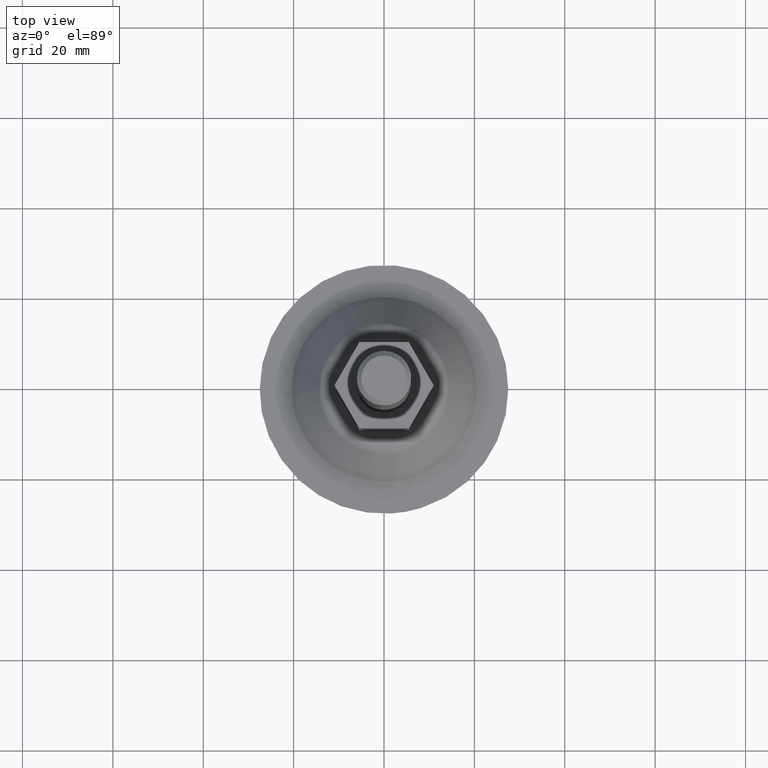
[diagram: clean part render]
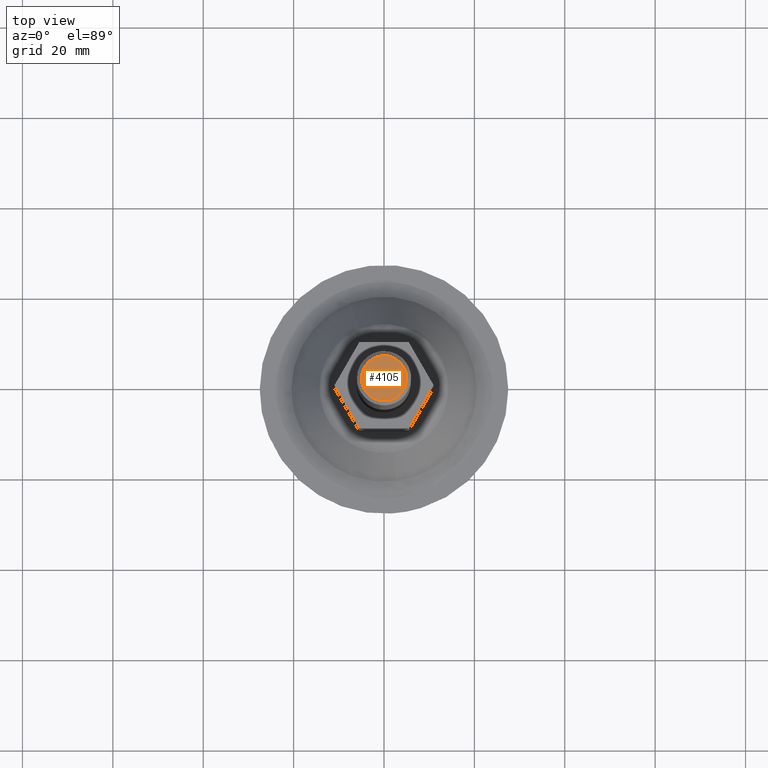
[diagram: same view with one face highlighted and labeled with its STEP entity id]
A machine part, top view. The second image highlights one B-rep face of the part: STEP entity #4105.
In plain terms, the highlighted face is a freeform B-spline surface patch.
Its self-contained STEP definition (entity closure, byte-faithful):
#2643=CARTESIAN_POINT('',(2.021077160560492,-4.573319047651122,141.999999999945200));
#2644=VERTEX_POINT('',#2643);
#2650=CARTESIAN_POINT('',(-5.0,0.0,142.0));
#2651=VERTEX_POINT('',#2650);
#2652=CARTESIAN_POINT('',(-5.0,0.0,142.0));
#2653=CARTESIAN_POINT('',(-5.000000000000001,-5.000000000000001,142.000000000000090));
#2654=CARTESIAN_POINT('',(0.0,-5.0,142.0));
#2655=CARTESIAN_POINT('',(1.055578086943457,-4.999999999999999,142.000000000000030));
#2656=CARTESIAN_POINT('',(2.021077160560493,-4.573319047651122,141.999999999945200));
#2664=(BOUNDED_CURVE()B_SPLINE_CURVE(2,(#2652,#2653,#2654,#2655,#2656),.UNSPECIFIED.,.F.,.U.)B_SPLINE_CURVE_WITH_KNOTS((3,2,3),(0.0,0.250000000000000,0.318638421580969),.UNSPECIFIED.)CURVE()GEOMETRIC_REPRESENTATION_ITEM()RATIONAL_B_SPLINE_CURVE((1.0,0.707106781186548,1.0,0.919585087075501,0.883326595708671))REPRESENTATION_ITEM(''));
#2665=EDGE_CURVE('',#2651,#2644,#2664,.T.);
#2667=CARTESIAN_POINT('',(0.043632678994367,4.999809615511975,141.999999999795790));
#2668=VERTEX_POINT('',#2667);
#2669=CARTESIAN_POINT('',(0.043632678994367,4.999809615511975,141.999999999795790));
#2670=CARTESIAN_POINT('',(0.021816755604309,5.0,142.000000000000060));
#2671=CARTESIAN_POINT('',(0.0,5.0,142.0));
#2672=CARTESIAN_POINT('',(-5.000000000000001,5.000000000000001,142.000000000000090));
#2673=CARTESIAN_POINT('',(-5.0,0.0,142.0));
#2681=(BOUNDED_CURVE()B_SPLINE_CURVE(2,(#2669,#2670,#2671,#2672,#2673),.UNSPECIFIED.,.F.,.U.)B_SPLINE_CURVE_WITH_KNOTS((3,2,3),(0.748460105559273,0.750000000000000,1.0),.UNSPECIFIED.)CURVE()GEOMETRIC_REPRESENTATION_ITEM()RATIONAL_B_SPLINE_CURVE((0.996414027855694,0.998195901442490,1.0,0.707106781186548,1.0))REPRESENTATION_ITEM(''));
#2682=EDGE_CURVE('',#2668,#2651,#2681,.T.);
#2771=CARTESIAN_POINT('',(5.0,0.0,142.0));
#2772=VERTEX_POINT('',#2771);
#2773=CARTESIAN_POINT('',(5.0,0.0,142.0));
#2774=CARTESIAN_POINT('',(5.0,4.956556049999344,141.999999999999970));
#2775=CARTESIAN_POINT('',(0.043632678994367,4.999809615511975,141.999999999795820));
#2783=(BOUNDED_CURVE()B_SPLINE_CURVE(2,(#2773,#2774,#2775),.UNSPECIFIED.,.F.,.U.)B_SPLINE_CURVE_WITH_KNOTS((3,3),(0.500000000000000,0.748460105559274),.UNSPECIFIED.)CURVE()GEOMETRIC_REPRESENTATION_ITEM()RATIONAL_B_SPLINE_CURVE((1.0,0.708910879744056,0.996414027855696))REPRESENTATION_ITEM(''));
#2784=EDGE_CURVE('',#2772,#2668,#2783,.T.);
#2786=CARTESIAN_POINT('',(2.021077160560493,-4.573319047651122,141.999999999945200));
#2787=CARTESIAN_POINT('',(5.0,-3.256850012025427,142.000000000000030));
#2788=CARTESIAN_POINT('',(5.0,0.0,142.0));
#2796=(BOUNDED_CURVE()B_SPLINE_CURVE(2,(#2786,#2787,#2788),.UNSPECIFIED.,.F.,.U.)B_SPLINE_CURVE_WITH_KNOTS((3,3),(0.318638421580969,0.500000000000000),.UNSPECIFIED.)CURVE()GEOMETRIC_REPRESENTATION_ITEM()RATIONAL_B_SPLINE_CURVE((0.883326595708671,0.787521694111047,1.0))REPRESENTATION_ITEM(''));
#2797=EDGE_CURVE('',#2644,#2772,#2796,.T.);
#4094=CARTESIAN_POINT('',(-5.499499980618060,5.499256346417611,142.0));
#4095=CARTESIAN_POINT('',(5.499500248838961,5.499256346417611,142.0));
#4096=CARTESIAN_POINT('',(-5.499499980618060,-5.498568538619225,142.0));
#4097=CARTESIAN_POINT('',(5.499500248838961,-5.498568538619225,142.0));
#4098=B_SPLINE_SURFACE_WITH_KNOTS('',1,1,((#4094,#4096),(#4095,#4097)),.UNSPECIFIED.,.F.,.F.,.U.,(2,2),(2,2),(0.0,10.999000229457019),(0.0,10.997824885036840),.UNSPECIFIED.);
#4099=ORIENTED_EDGE('',*,*,#2665,.T.);
#4100=ORIENTED_EDGE('',*,*,#2797,.T.);
#4101=ORIENTED_EDGE('',*,*,#2784,.T.);
#4102=ORIENTED_EDGE('',*,*,#2682,.T.);
#4103=EDGE_LOOP('',(#4099,#4100,#4101,#4102));
#4104=FACE_OUTER_BOUND('',#4103,.T.);
#4105=ADVANCED_FACE('',(#4104),#4098,.F.);